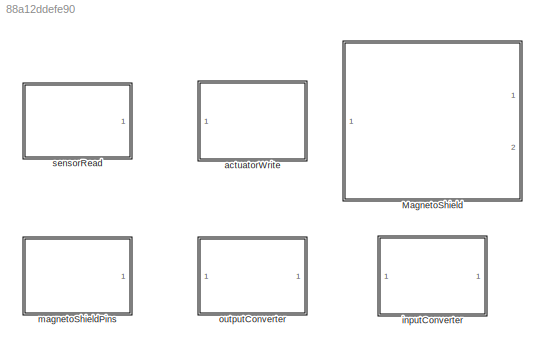
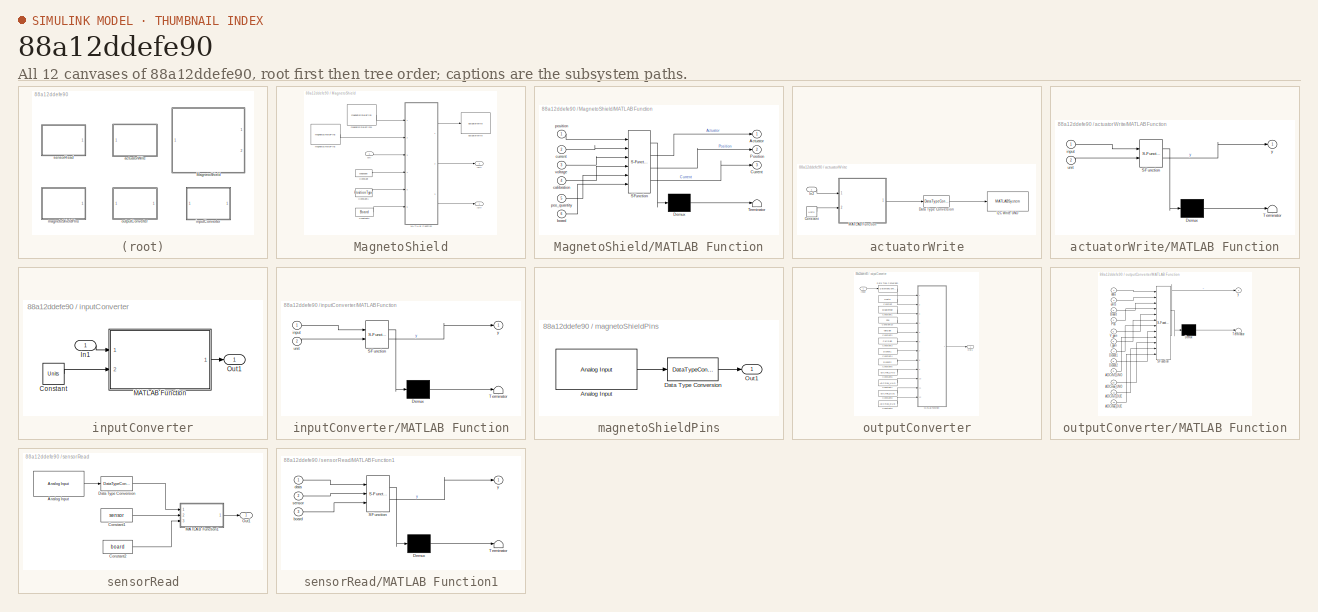
[diagram: thumbnail index - all 12 canvases of the model, root first then tree order]
MODEL slx_88a12ddefe90
KIND library
CONFIG AbsTol = auto
CONFIG EnableMultiTasking = off
CONFIG FixedStep = auto
CONFIG MaxStep = auto
CONFIG MinStep = auto
CONFIG RelTol = 1e-3
CONFIG SampleTimeConstraint = Unconstrained
CONFIG Solver = VariableStepAuto
CONFIG SolverName = VariableStepAuto
CONFIG StartTime = 0.0
CONFIG StopTime = 10.0
BLOCK [SubSystem] MagnetoShield
  Ports = [1, 2]
  RequestExecContextInheritance = off
BLOCK [Constant] MagnetoShield/Constant
  SampleTime = Ts
  Value = chackbox
BLOCK [Constant] MagnetoShield/Constant1
  SampleTime = Ts
  Value = PositionType
BLOCK [Constant] MagnetoShield/Constant2
  SampleTime = Ts
  Value = Board
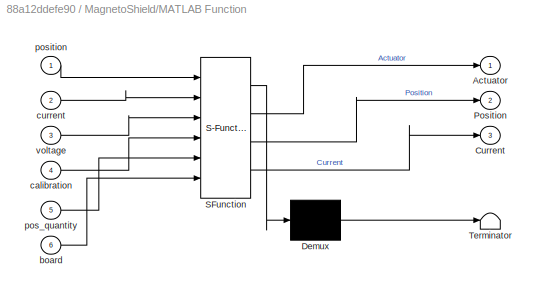
BLOCK [SubSystem] MagnetoShield/MATLAB Function
  ErrorFcn = Stateflow.Translate.translate
  PermitHierarchicalResolution = ExplicitOnly
  Ports = [6, 3]
  RequestExecContextInheritance = off
  SFBlockType = MATLAB Function
  TreatAsAtomicUnit = on
BLOCK [Demux] MagnetoShield/MATLAB Function/ Demux 
  DisplayOption = bar
  Outputs = 1
  Ports = [1, 1]
BLOCK [S-Function] MagnetoShield/MATLAB Function/ SFunction 
  EnableBusSupport = off
  FunctionName = sf_sfun
  PortCounts = [6 4]
  Ports = [6, 4]
  SFcnIsStateOwnerBlock = off
  SFunctionDeploymentMode = off
  Tag = Stateflow S-Function MagnetoLibrary 8
BLOCK [Terminator] MagnetoShield/MATLAB Function/ Terminator 
BLOCK [Outport] MagnetoShield/MATLAB Function/Actuator
  IconDisplay = Port number
BLOCK [Outport] MagnetoShield/MATLAB Function/Current
  IconDisplay = Port number
  Port = 3
BLOCK [Outport] MagnetoShield/MATLAB Function/Position
  IconDisplay = Port number
  Port = 2
BLOCK [Inport] MagnetoShield/MATLAB Function/board
  IconDisplay = Port number
  Port = 6
BLOCK [Inport] MagnetoShield/MATLAB Function/calibration
  IconDisplay = Port number
  Port = 4
BLOCK [Inport] MagnetoShield/MATLAB Function/current
  IconDisplay = Port number
  Port = 2
BLOCK [Inport] MagnetoShield/MATLAB Function/pos_quantity
  IconDisplay = Port number
  Port = 5
BLOCK [Inport] MagnetoShield/MATLAB Function/position
  IconDisplay = Port number
BLOCK [Inport] MagnetoShield/MATLAB Function/voltage
  IconDisplay = Port number
  Port = 3
BLOCK [Reference] MagnetoShield/actuatorWrite  REF=$bdroot/actuatorWrite
  Ports = [1]
  SourceBlock = $bdroot/actuatorWrite
BLOCK [Reference] MagnetoShield/magnetoShieldPins  REF=$bdroot/magnetoShieldPins
  Ports = [0, 1]
  SourceBlock = $bdroot/magnetoShieldPins
BLOCK [Reference] MagnetoShield/magnetoShieldPins1  REF=$bdroot/magnetoShieldPins
  Ports = [0, 1]
  SourceBlock = $bdroot/magnetoShieldPins
BLOCK [Inport] MagnetoShield/u(t)
  IconDisplay = Port number
BLOCK [Outport] MagnetoShield/y1(t)
  IconDisplay = Port number
BLOCK [Outport] MagnetoShield/y2(t)
  IconDisplay = Port number
  Port = 2
BLOCK [SubSystem] actuatorWrite
  Ports = [1]
  RequestExecContextInheritance = off
BLOCK [Constant] actuatorWrite/Constant
  Value = Units
BLOCK [DataTypeConversion] actuatorWrite/Data Type Conversion
  OutDataTypeStr = uint16
  RndMeth = Floor
  SaturateOnIntegerOverflow = off
BLOCK [MATLABSystem] actuatorWrite/I2C Write UNO
  AncestorBlock = arduinolib/I2C Write
  DataLength = 1
  Direction = Transmitter
  I2CModule = 0
  InitFcn = codertarget.arduinobase.blocks.registerI2CBlock(gcbh);\ncodertarget.arduinobase.blocks.arduinoBlockInitFcnCallback(gcbh);
  MaskDisplay = color('white');\nplot([100,100,100,100],[100,100,100,100]);\nplot([0,0,0,0],[0,0,0,0]);\ncolor('blue');\ntext(99, 92, 'ARDUINO', 'horizontalAlignment', 'right');\ncolor('black');\ntext(50,60,'\fontsize{12}\bfI2C','texmode','on','horizontalAlignment','center','verticalAlignment','middle');\ntext(50,40,'\fontsize{10}\bfMaster Write','texmode','on','horizontalAlignment','center','verticalAlignment','middle'...<+92ch>
  MaskType = I2C Write
  Mode = Master
  NoAck = off
  OutputStatus = off
  Ports = [1]
  RegisterAddress = 0
  RegisterAddressMode = off
  RepeatedStart = off
  SlaveAddress = 96
  SlaveByteOrder = BigEndian
  SlaveDataType = uint8
  System = codertarget.arduinobase.internal.arduinoI2CWrite
  blockPlatform = ARDUINO
BLOCK [Inport] actuatorWrite/In2
  IconDisplay = Port number
BLOCK [SubSystem] actuatorWrite/MATLAB Function
  ErrorFcn = Stateflow.Translate.translate
  PermitHierarchicalResolution = ExplicitOnly
  Ports = [2, 1]
  RequestExecContextInheritance = off
  SFBlockType = MATLAB Function
  TreatAsAtomicUnit = on
BLOCK [Demux] actuatorWrite/MATLAB Function/ Demux 
  DisplayOption = bar
  Outputs = 1
  Ports = [1, 1]
BLOCK [S-Function] actuatorWrite/MATLAB Function/ SFunction 
  EnableBusSupport = off
  FunctionName = sf_sfun
  PortCounts = [2 2]
  Ports = [2, 2]
  SFcnIsStateOwnerBlock = off
  SFunctionDeploymentMode = off
  Tag = Stateflow S-Function MagnetoLibrary 3
BLOCK [Terminator] actuatorWrite/MATLAB Function/ Terminator 
BLOCK [Inport] actuatorWrite/MATLAB Function/input
  IconDisplay = Port number
BLOCK [Inport] actuatorWrite/MATLAB Function/unit
  IconDisplay = Port number
  Port = 2
BLOCK [Outport] actuatorWrite/MATLAB Function/y
  IconDisplay = Port number
BLOCK [SubSystem] inputConverter
  Ports = [1, 1]
  RequestExecContextInheritance = off
BLOCK [Constant] inputConverter/Constant
  Value = Units
BLOCK [Inport] inputConverter/In1
  IconDisplay = Port number
BLOCK [SubSystem] inputConverter/MATLAB Function
  ErrorFcn = Stateflow.Translate.translate
  PermitHierarchicalResolution = ExplicitOnly
  Ports = [2, 1]
  RequestExecContextInheritance = off
  SFBlockType = MATLAB Function
  TreatAsAtomicUnit = on
BLOCK [Demux] inputConverter/MATLAB Function/ Demux 
  DisplayOption = bar
  Outputs = 1
  Ports = [1, 1]
BLOCK [S-Function] inputConverter/MATLAB Function/ SFunction 
  EnableBusSupport = off
  FunctionName = sf_sfun
  PortCounts = [2 2]
  Ports = [2, 2]
  SFcnIsStateOwnerBlock = off
  SFunctionDeploymentMode = off
  Tag = Stateflow S-Function MagnetoLibrary 1
BLOCK [Terminator] inputConverter/MATLAB Function/ Terminator 
BLOCK [Inport] inputConverter/MATLAB Function/input
  IconDisplay = Port number
BLOCK [Inport] inputConverter/MATLAB Function/unit
  IconDisplay = Port number
  Port = 2
BLOCK [Outport] inputConverter/MATLAB Function/y
  IconDisplay = Port number
BLOCK [Outport] inputConverter/Out1
  IconDisplay = Port number
BLOCK [SubSystem] magnetoShieldPins
  Ports = [0, 1]
  RequestExecContextInheritance = off
BLOCK [Reference] magnetoShieldPins/Analog Input  REF=arduinolib/Analog Input
  Ports = [0, 1]
  SourceBlock = arduinolib/Analog Input
  SourceProductBaseCode = ARDUINO
  SourceType = Arduino Analog Input
BLOCK [DataTypeConversion] magnetoShieldPins/Data Type Conversion
  OutDataTypeStr = double
  RndMeth = Floor
  SaturateOnIntegerOverflow = off
BLOCK [Outport] magnetoShieldPins/Out1
  IconDisplay = Port number
BLOCK [SubSystem] outputConverter
  Ports = [1, 1]
  RequestExecContextInheritance = off
BLOCK [Constant] outputConverter/Constant
  Value = Units
BLOCK [Constant] outputConverter/Constant1
  Value = BoardType
BLOCK [Constant] outputConverter/Constant10
  Value = Pos
BLOCK [Constant] outputConverter/Constant2
  Value = VoltGain
BLOCK [Constant] outputConverter/Constant3
  Value = CurrGain
BLOCK [Constant] outputConverter/Constant4
  Value = Dconst1
BLOCK [Constant] outputConverter/Constant5
  Value = Dconst2
BLOCK [Constant] outputConverter/Constant6
  Value = ADCmin_UNO
BLOCK [Constant] outputConverter/Constant7
  Value = ADCmax_UNO
BLOCK [Constant] outputConverter/Constant8
  Value = ADCmin_DUE
BLOCK [Constant] outputConverter/Constant9
  Value = ADCmax_DUE
BLOCK [DataTypeConversion] outputConverter/Data Type Conversion
  OutDataTypeStr = double
  RndMeth = Floor
  SaturateOnIntegerOverflow = off
BLOCK [Inport] outputConverter/Input
  IconDisplay = Port number
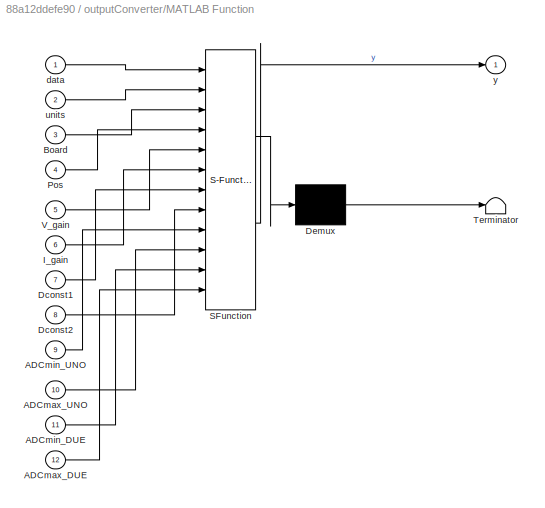
BLOCK [SubSystem] outputConverter/MATLAB Function
  ErrorFcn = Stateflow.Translate.translate
  PermitHierarchicalResolution = ExplicitOnly
  Ports = [12, 1]
  RequestExecContextInheritance = off
  SFBlockType = MATLAB Function
  TreatAsAtomicUnit = on
BLOCK [Demux] outputConverter/MATLAB Function/ Demux 
  DisplayOption = bar
  Outputs = 1
  Ports = [1, 1]
BLOCK [S-Function] outputConverter/MATLAB Function/ SFunction 
  EnableBusSupport = off
  FunctionName = sf_sfun
  PortCounts = [12 2]
  Ports = [12, 2]
  SFcnIsStateOwnerBlock = off
  SFunctionDeploymentMode = off
  Tag = Stateflow S-Function MagnetoLibrary 4
BLOCK [Terminator] outputConverter/MATLAB Function/ Terminator 
BLOCK [Inport] outputConverter/MATLAB Function/ADCmax_DUE
  IconDisplay = Port number
  Port = 12
BLOCK [Inport] outputConverter/MATLAB Function/ADCmax_UNO
  IconDisplay = Port number
  Port = 10
BLOCK [Inport] outputConverter/MATLAB Function/ADCmin_DUE
  IconDisplay = Port number
  Port = 11
BLOCK [Inport] outputConverter/MATLAB Function/ADCmin_UNO
  IconDisplay = Port number
  Port = 9
BLOCK [Inport] outputConverter/MATLAB Function/Board
  IconDisplay = Port number
  Port = 3
BLOCK [Inport] outputConverter/MATLAB Function/Dconst1
  IconDisplay = Port number
  Port = 7
BLOCK [Inport] outputConverter/MATLAB Function/Dconst2
  IconDisplay = Port number
  Port = 8
BLOCK [Inport] outputConverter/MATLAB Function/I_gain
  IconDisplay = Port number
  Port = 6
BLOCK [Inport] outputConverter/MATLAB Function/Pos
  IconDisplay = Port number
  Port = 4
BLOCK [Inport] outputConverter/MATLAB Function/V_gain
  IconDisplay = Port number
  Port = 5
BLOCK [Inport] outputConverter/MATLAB Function/data
  IconDisplay = Port number
BLOCK [Inport] outputConverter/MATLAB Function/units
  IconDisplay = Port number
  Port = 2
BLOCK [Outport] outputConverter/MATLAB Function/y
  IconDisplay = Port number
BLOCK [Outport] outputConverter/Out1
  IconDisplay = Port number
BLOCK [SubSystem] sensorRead
  Ports = [0, 1]
  RequestExecContextInheritance = off
BLOCK [Reference] sensorRead/Analog Input  REF=arduinolib/Analog Input
  Ports = [0, 1]
  SourceBlock = arduinolib/Analog Input
  SourceProductBaseCode = ARDUINO
  SourceType = Arduino Analog Input
BLOCK [Constant] sensorRead/Constant1
  Value = sensor
BLOCK [Constant] sensorRead/Constant2
  Value = board
BLOCK [DataTypeConversion] sensorRead/Data Type Conversion
  OutDataTypeStr = double
  RndMeth = Floor
  SaturateOnIntegerOverflow = off
BLOCK [SubSystem] sensorRead/MATLAB Function1
  ErrorFcn = Stateflow.Translate.translate
  PermitHierarchicalResolution = ExplicitOnly
  Ports = [3, 1]
  RequestExecContextInheritance = off
  SFBlockType = MATLAB Function
  TreatAsAtomicUnit = on
BLOCK [Demux] sensorRead/MATLAB Function1/ Demux 
  DisplayOption = bar
  Outputs = 1
  Ports = [1, 1]
BLOCK [S-Function] sensorRead/MATLAB Function1/ SFunction 
  EnableBusSupport = off
  FunctionName = sf_sfun
  PortCounts = [3 2]
  Ports = [3, 2]
  SFcnIsStateOwnerBlock = off
  SFunctionDeploymentMode = off
  Tag = Stateflow S-Function MagnetoLibrary 5
BLOCK [Terminator] sensorRead/MATLAB Function1/ Terminator 
BLOCK [Inport] sensorRead/MATLAB Function1/board
  IconDisplay = Port number
  Port = 3
BLOCK [Inport] sensorRead/MATLAB Function1/data
  IconDisplay = Port number
BLOCK [Inport] sensorRead/MATLAB Function1/sensor
  IconDisplay = Port number
  Port = 2
BLOCK [Outport] sensorRead/MATLAB Function1/y
  IconDisplay = Port number
BLOCK [Outport] sensorRead/Out1
  IconDisplay = Port number
LINE inputConverter/Constant:1 -> inputConverter/MATLAB Function:2
LINE inputConverter/In1:1 -> inputConverter/MATLAB Function:1
LINE inputConverter/MATLAB Function:1 -> inputConverter/Out1:1
LINE outputConverter/Constant10:1 -> outputConverter/MATLAB Function:4
LINE outputConverter/Constant1:1 -> outputConverter/MATLAB Function:3
LINE outputConverter/Constant2:1 -> outputConverter/MATLAB Function:5
LINE outputConverter/Constant3:1 -> outputConverter/MATLAB Function:6
LINE outputConverter/Constant4:1 -> outputConverter/MATLAB Function:7
LINE outputConverter/Constant5:1 -> outputConverter/MATLAB Function:8
LINE outputConverter/Constant6:1 -> outputConverter/MATLAB Function:9
LINE outputConverter/Constant7:1 -> outputConverter/MATLAB Function:10
LINE outputConverter/Constant8:1 -> outputConverter/MATLAB Function:11
LINE outputConverter/Constant9:1 -> outputConverter/MATLAB Function:12
LINE outputConverter/Constant:1 -> outputConverter/MATLAB Function:2
LINE outputConverter/Data Type Conversion:1 -> outputConverter/MATLAB Function:1
LINE outputConverter/Input:1 -> outputConverter/Data Type Conversion:1
LINE outputConverter/MATLAB Function:1 -> outputConverter/Out1:1
CHART inputConverter/MATLAB Function states=1 transitions=1
  STATE_LABEL 'eML_blk_kernel()'
  STATE_LABEL 'SCRIPT:\nfunction y = fcn(input,unit)\n\nif unit==1 % voltage\n    y = 4095/10*input;\nelseif unit==2 % percents\n    y = 4095/100*input;\nelseif unit==3 % dac levels\n    y = input;\nelse\n     y = 0; % needed instance\nend\n% secures that 12-bit number will not overcross a size boundary\nif y>4095\n    y=4095;\nelseif y<0\n    y=0;\nend\n\nend'
CHART actuatorWrite/MATLAB Function states=1 transitions=1
  STATE_LABEL 'eML_blk_kernel()'
  STATE_LABEL 'SCRIPT:\nfunction y = fcn(input,unit)\n\nif unit==1 % voltage\n    y = 4095/10*input;\nelseif unit==2 % percents\n    y = 4095/100*input;\nelseif unit==3 % dac levels\n    y = input;\nelse\n     y = 0; % needed instance\nend\n% secures that 12-bit number will not overcross a size boundary\nif y>4095\n    y=4095;\nelseif y<0\n    y=0;\nend\n\nend'
CHART outputConverter/MATLAB Function states=1 transitions=1
  STATE_LABEL 'eML_blk_kernel()'
  STATE_LABEL 'SCRIPT:\nfunction y = fcn(data,units,Board,Pos,V_gain,I_gain,Dconst1,Dconst2,ADCmin_UNO,...\n    ADCmax_UNO,ADCmin_DUE,ADCmax_DUE)\nA1302_SENSITIVITY = 769.23;\nif Board==1\n    ARES3V3 = 3.3/1023; % ADC constant for AVR architecture\nelseif Board==2\n    ARES3V3 = 3.3/4095; % ADC constant for SAM/SAMD architecture\nelse\n    ARES3V3 = 0; % hase to be as a default case for successful compilation\nend\n\nif un...<+767ch>'
CHART sensorRead/MATLAB Function1 states=1 transitions=1
  STATE_LABEL 'eML_blk_kernel()'
  STATE_LABEL 'SCRIPT:\nfunction y = fcn(data,sensor,board)\npersistent init A1302_SENSITIVITY Dconst1 Dconst2 I_gain V_gain ARES3V3;\nif isempty(init)\n    init = 1;\n    A1302_SENSITIVITY = 769.23;\n    Dconst1 = 3.233100;\n    Dconst2 = 0.220571;\n    I_gain = 33.333333;\n    V_gain = 4;\n    if board==1\n        ARES3V3 = 3.3/1023; % ADC constant for AVR architecture\n    else\n        ARES3V3 = 3.3/4095; % ADC constant ...<+391ch>'
CHART MagnetoShield/MATLAB Function states=1 transitions=1
  STATE_LABEL 'eML_blk_kernel()'
  STATE_LABEL 'SCRIPT:\nfunction [Actuator,Position,Current] = fcn(position,current,voltage,calibration,pos_quantity,board)\npersistent adcMAX adcMIN p_d1 p_d2 counter calib ARES3V3 A1302_SENSITIVITY;\nif isempty(counter)\n         p_d1 = 3.233100;\n         p_d2 = 0.220571;\n         counter = 0;\n         calib = calibration;\n         if calibration==1\n            adcMAX = 300;\n            adcMIN = 300;\n         else...<+1608ch>'
